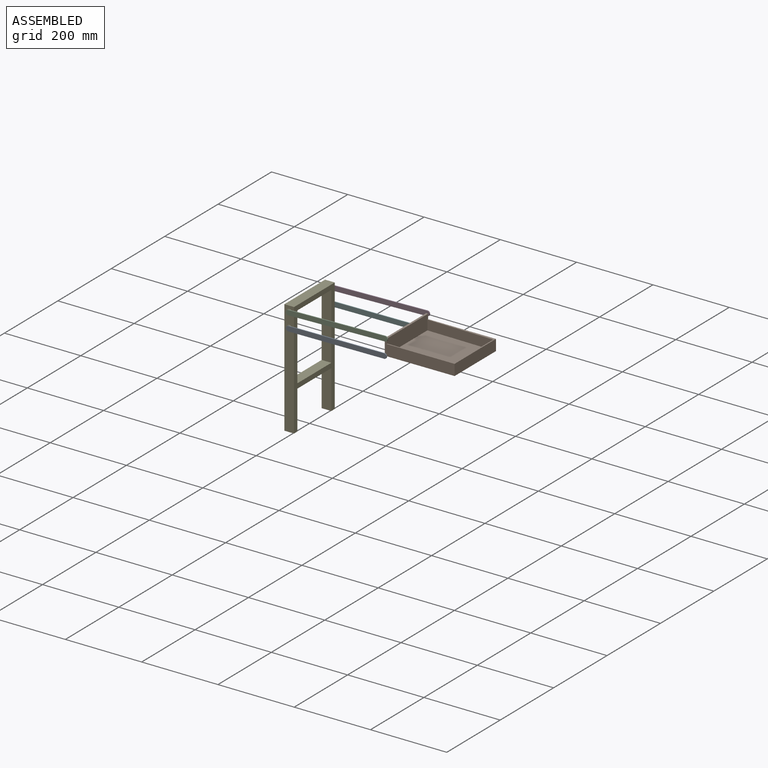
[diagram: assembled view]
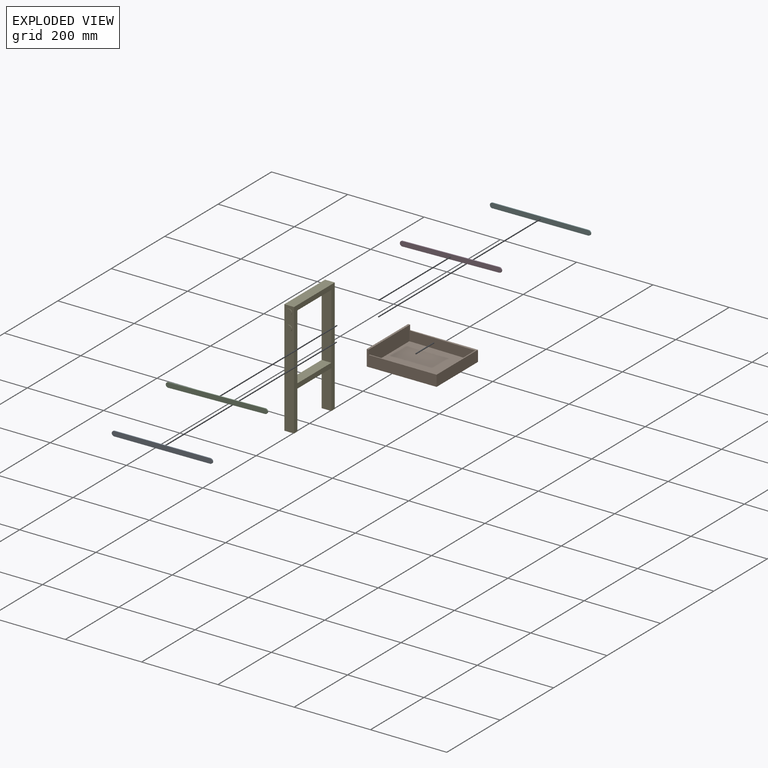
[diagram: exploded view]
GUIDED TOUR — MATED ASSEMBLY (Onshape document 858ce2b3064083f0d01fbd8e, AutoMate assembly 858ce2b3064083f0d01fbd8e_062a2cf71fd694ccb929598b_6919531b262e813028e73da2_default)

This assembly has 6 components, labeled P0..P5 below (a component is one placed occurrence of a part; the same part can appear more than once), held together by 8 mates. A mate is a constraint between two components; its type names the relative motion it leaves free:
  REVOLUTE — leaves rotation about the listed axis free (a hinge).
Axis/direction vectors are unit vectors and 'through' points are millimeter coordinates, both in the assembly's world frame.

MATES
  1. REVOLUTE "Revolute 6": P1 <-> P0, axis (0.000, -1.000, 0.000) through (251.45, -77.47, 134.54) mm
  2. REVOLUTE "Revolute 7": P3 <-> P1, axis (0.000, -1.000, 0.000) through (253.93, 77.47, 176.04) mm
  3. REVOLUTE "Revolute 8": P4 <-> P5, axis (0.000, 1.000, 0.000) through (0.00, 77.47, 132.08) mm
  4. REVOLUTE "Revolute 4": P5 <-> P1, axis (0.000, -1.000, 0.000) through (251.45, 77.47, 134.54) mm
  5. REVOLUTE "Revolute 5": P2 <-> P1, axis (0.000, 1.000, 0.000) through (253.93, -77.47, 176.04) mm
  6. REVOLUTE "Revolute 1": P2 <-> P4, axis (0.000, 1.000, 0.000) through (0.00, -77.47, 170.18) mm
  7. REVOLUTE "Revolute 2": P0 <-> P4, axis (0.000, 1.000, 0.000) through (0.00, -77.47, 132.08) mm
  8. REVOLUTE "Revolute 3": P3 <-> P4, axis (0.000, -1.000, 0.000) through (0.00, 77.47, 170.18) mm

ASSEMBLY ORDER
  1. P4 — the base component [order verified]
  2. P1 [order verified]
  3. P5 [order verified]
  4. P3 [order verified]
  5. P0 [order verified]
  6. P2 [order verified]
Order-tag legend:
  [order verified] — this step's position reverses a verified removal order: the component was checked to insert without passing through the ones already placed.

Of the 6 components, 1 carries the full construction recipe — the FeatureScript program that regenerates the part's solid from scratch; the rest are supplied as boundary geometry only.
Each toured component is shown spotlighted twice — in the assembled view, then in the exploded view, where a leader line traces a displaced component back to its assembled socket (saturated green if recipe-attached, orange if geometry-only; every other component desaturated gray) — followed by its recipe or geometry summary and the mates that hold it.
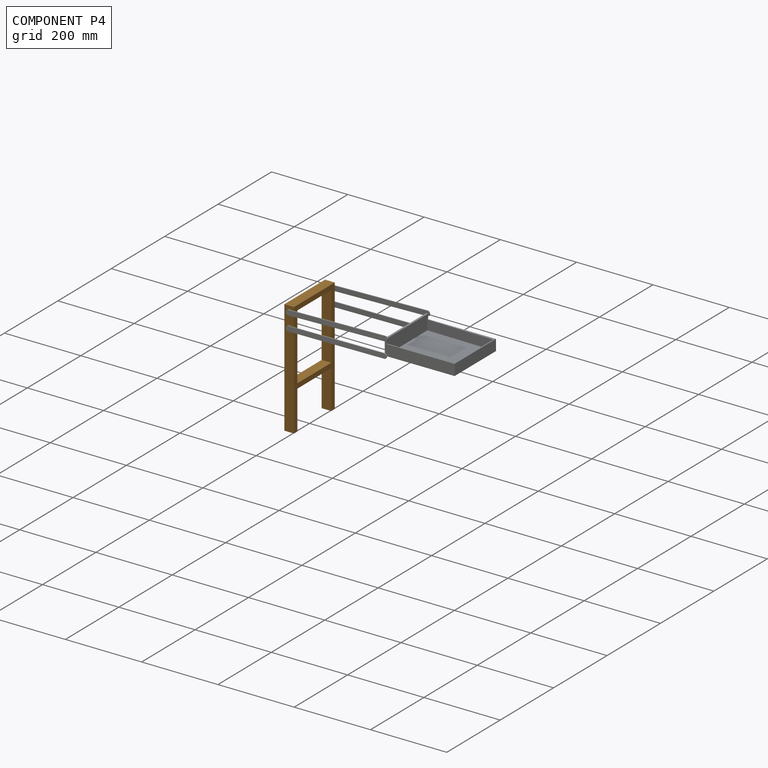
[diagram: component P4 — assembled]
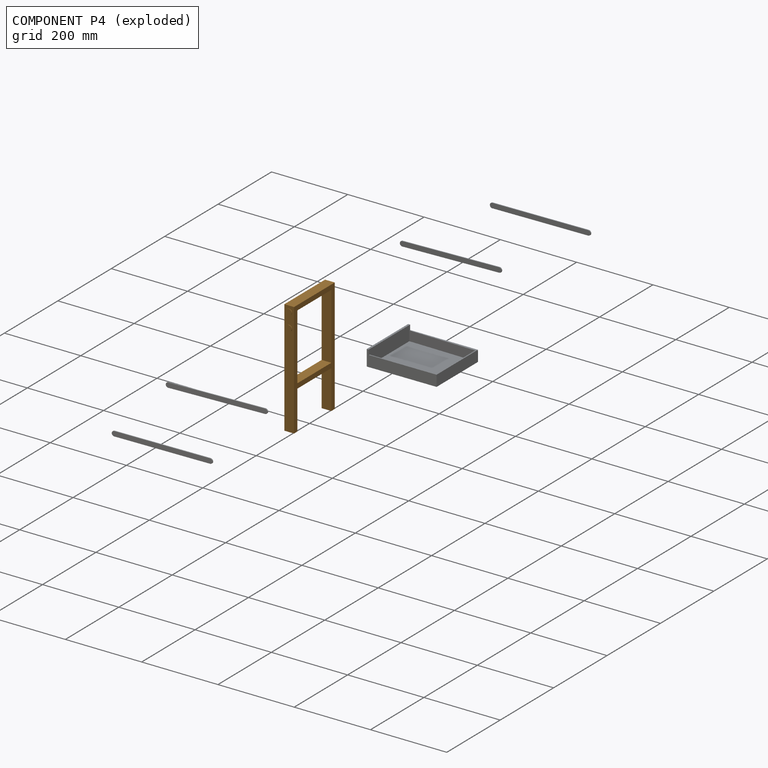
[diagram: component P4 — exploded]
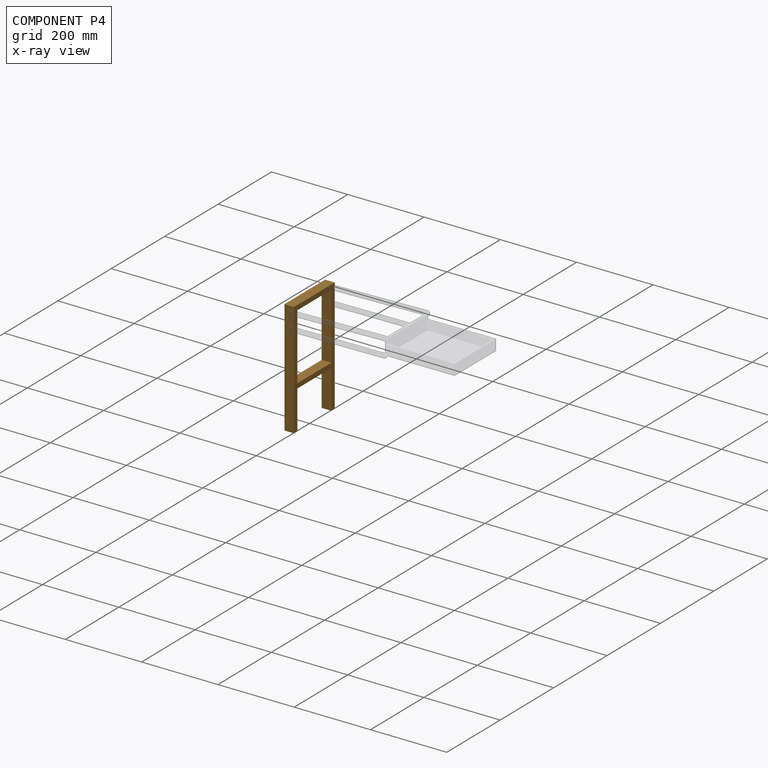
[diagram: component P4 — x-ray view]
COMPONENT P4 — geometry summary (no construction recipe available for this part):
  bounding box: 299.7 x 154.9 x 25.4 mm
  B-rep topology: 1 solid, 22 faces, 96 edges
  volume: 276229 mm^3 (23% of its bounding box)
  symmetry: 2-fold rotationally symmetric about the z axis; mirror-symmetric across its x mid-plane, y mid-plane
Held by: REVOLUTE mate "Revolute 8" to P5; REVOLUTE mate "Revolute 1" to P2; REVOLUTE mate "Revolute 2" to P0; REVOLUTE mate "Revolute 3" to P3.
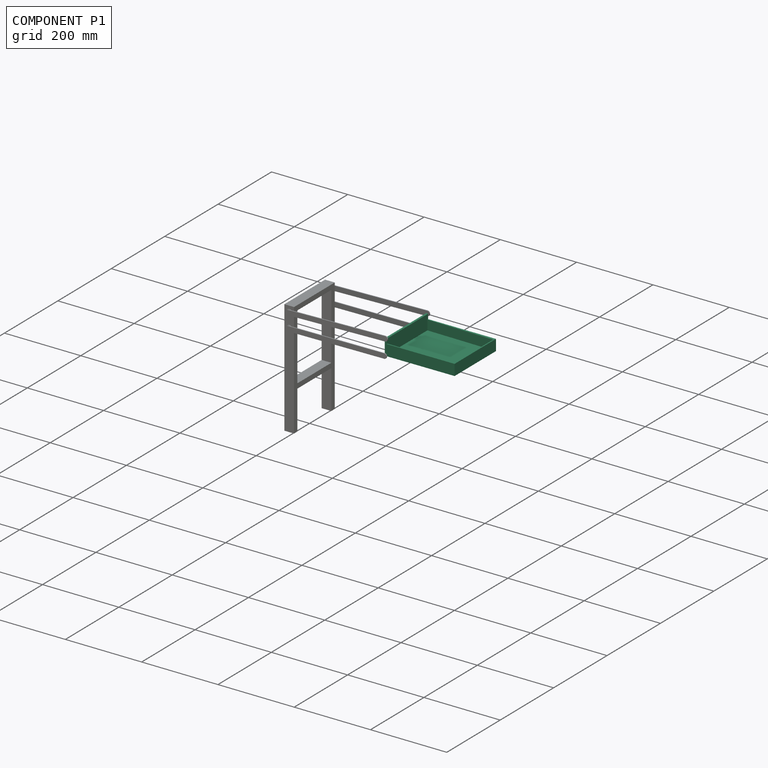
[diagram: component P1 — assembled]
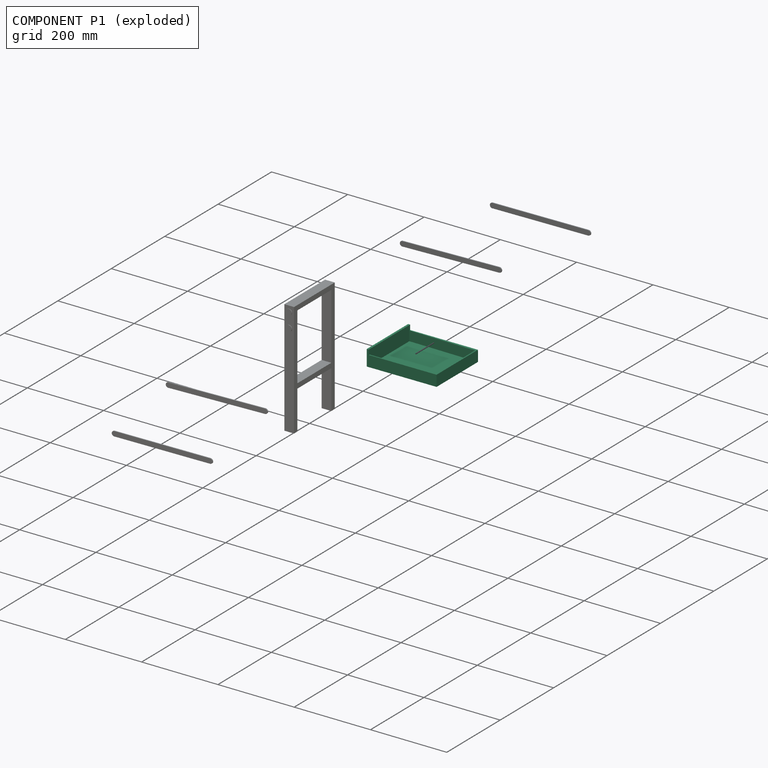
[diagram: component P1 — exploded]
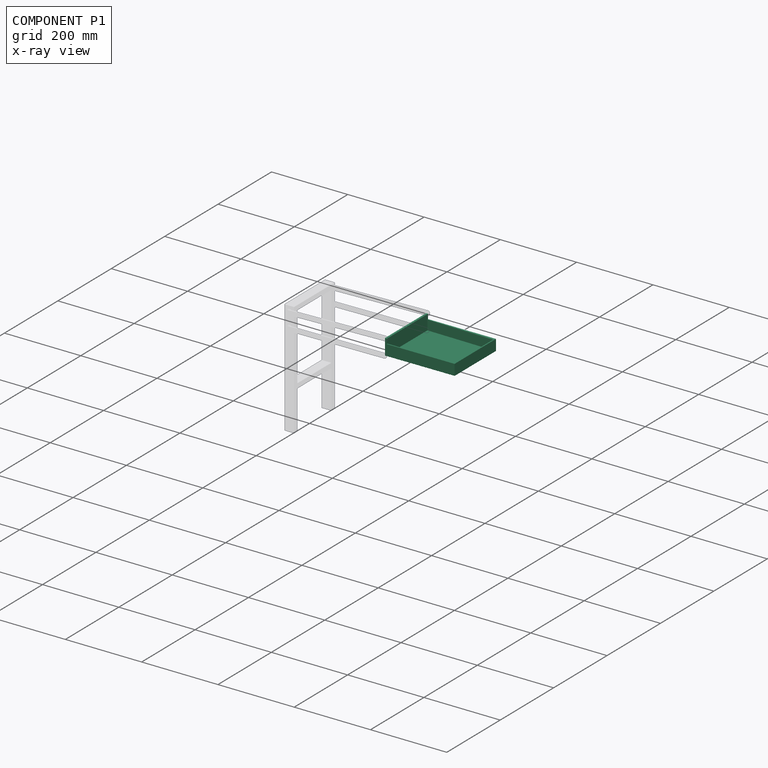
[diagram: component P1 — x-ray view]
COMPONENT P1 — recipe-attached (CADFS 00538765, mesh-verified: the recipe's output STEP matches this component's geometry to below the mesh-comparison resolution (tessellation chordal tolerance ~0.365 mm)).
Held by: REVOLUTE mate "Revolute 6" to P0; REVOLUTE mate "Revolute 7" to P3; REVOLUTE mate "Revolute 4" to P5; REVOLUTE mate "Revolute 5" to P2.
Construction recipe (FeatureScript — the CAD program that rebuilds this solid; sketch coordinates are in the units given by the * unit suffixes, e.g. mm):

FeatureScript 1511;
import(path : "onshape/std/geometry.fs", version : "1511.0");
import(path : "onshape/std/common.fs", version : "1511.0");
const mm = millimeter;
const VERTEX = EntityType.VERTEX;
const EDGE = EntityType.EDGE;
const FACE = EntityType.FACE;
const BODY = EntityType.BODY;
function v(x, y){return vector(x, y);}
function OD(order){return orderDisambiguation(order);}
function OSD(set){return originalSetDisambiguation(set);}
function TD(topology){return topologyDisambiguation(topology);}
function TDD(query){return trueDependencyDisambiguation(query);}
function sQuery(a, b, c) {return sketchEntityQuery(a, b, c);}

annotation { "Feature Type Name" : "Feature", "Feature Type Description" : "" }
export const myFeature = defineFeature(function(context is Context, id is Id, definition is map)
    precondition{}
    {
        {
            var Q0;
            Q0=qCreatedBy(makeId("Front.planeOp"),FACE);
            var sketch = newSketch(context, id + "F0", { "sketchPlane" : qUnion([Q0])});
            skLineSegment(sketch, "E0.top", {"start": v(0, 38.1) * mm, "end": v(-5.29, 38.1) * mm});
            skLineSegment(sketch, "E0.left", {"start": v(0, 0) * mm, "end": v(0, 38.1) * mm});
            skLineSegment(sketch, "E1", {"start": v(0, 0) * mm, "end": v(177.8, 0) * mm});
            skLineSegment(sketch, "E2", {"start": v(177.8, 0) * mm, "end": v(177.8, -3.39) * mm});
            skLineSegment(sketch, "E3", {"start": v(177.8, -3.39) * mm, "end": v(-5.29, -3.39) * mm});
            skLineSegment(sketch, "E4", {"start": v(-5.29, 38.1) * mm, "end": v(-5.29, -3.39) * mm});
            skSolve(sketch);
        }
        {
            var Q0;
            Q0 = qSketchRegion(id + "F0", true);
            extrude(context, id + "F1", {"entities" : qUnion([Q0]), "endBound" : BoundingType.SYMMETRIC, "depth" : 154.94 * mm, "offsetDistance" : 25.4 * mm});
        }
        {
            var Q0;
            Q0=makeQuery(id+"F1.opExtrude","SWEPT_FACE",FACE,{"disambiguationData":[OSD([sQuery(id+"F0.wireOp",EDGE,"E0.left")])]});
            var sketch = newSketch(context, id + "F2", { "sketchPlane" : qUnion([Q0])});
            skLineSegment(sketch, "E5.bottom", {"start": v(-64.77, 55.88) * mm, "end": v(64.77, 55.88) * mm});
            skLineSegment(sketch, "E5.top", {"start": v(-64.77, 0) * mm, "end": v(64.77, 0) * mm});
            skLineSegment(sketch, "E5.left", {"start": v(-64.77, 55.88) * mm, "end": v(-64.77, 0) * mm});
            skLineSegment(sketch, "E5.right", {"start": v(64.77, 55.88) * mm, "end": v(64.77, 0) * mm});
            skSolve(sketch);
        }
        {
            var Q0;
            Q0=makeQuery(id+"FWv1kH76DlVqDbQ_1.boolean.opBoolean","MERGE",FACE,{"derivedFrom":[makeQuery(id+"F1.opExtrude","SWEPT_FACE",FACE,{"disambiguationData":[OSD([sQuery(id+"F0.wireOp",EDGE,"E1")])]}),makeQuery(id+"FWv1kH76DlVqDbQ_1.opExtrude","SWEPT_FACE",FACE,{"disambiguationData":[OSD([sQuery(id+"F2.wireOp",EDGE,"E5.top")])]})]});
            var sketch = newSketch(context, id + "F3", { "sketchPlane" : qUnion([Q0])});
            skLineSegment(sketch, "E6", {"start": v(0, -77.47) * mm, "end": v(177.8, -77.47) * mm});
            skLineSegment(sketch, "E7", {"start": v(177.8, -77.47) * mm, "end": v(177.8, 77.47) * mm});
            skLineSegment(sketch, "E8", {"start": v(177.8, 77.47) * mm, "end": v(0, 77.47) * mm});
            skLineSegment(sketch, "E9", {"start": v(0, 77.47) * mm, "end": v(-0.06, 74.55) * mm});
            skLineSegment(sketch, "E10", {"start": v(-0.06, 74.55) * mm, "end": v(174.88, 71.13) * mm});
            skLineSegment(sketch, "E11", {"start": v(174.88, 71.13) * mm, "end": v(174.88, -74.6) * mm});
            skLineSegment(sketch, "E12", {"start": v(174.88, -74.6) * mm, "end": v(0, -74.56) * mm});
            skLineSegment(sketch, "E13", {"start": v(0, -77.47) * mm, "end": v(0, -74.56) * mm});
            skSolve(sketch);
        }
        {
            var Q0;
            Q0 = qSketchRegion(id + "F3", true);
            extrude(context, id + "F4", {"entities" : qUnion([Q0]), "operationType" : NewBodyOperationType.ADD, "depth" : 25.4 * mm, "offsetDistance" : 25.4 * mm});
        }
    });
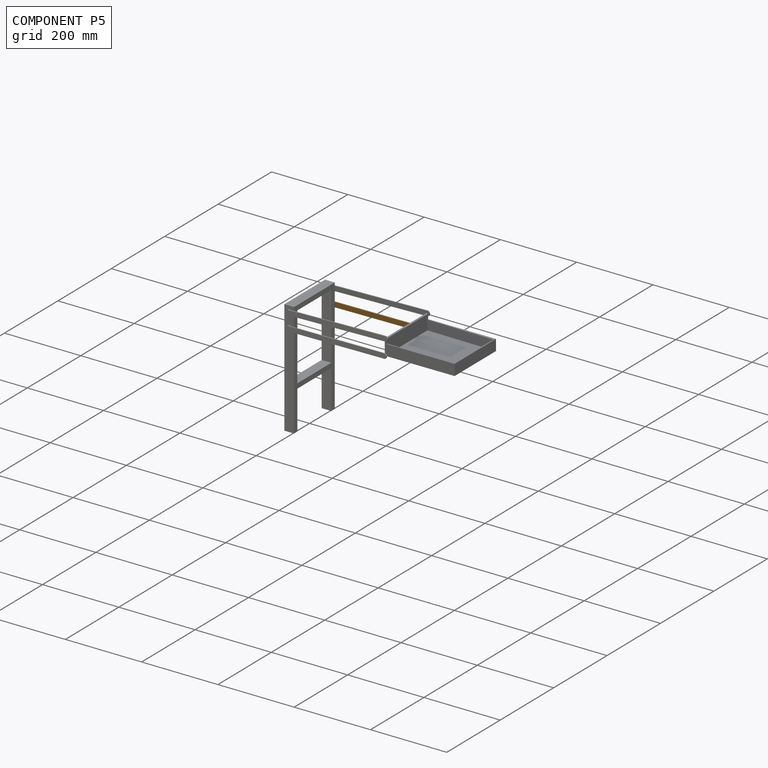
[diagram: component P5 — assembled]
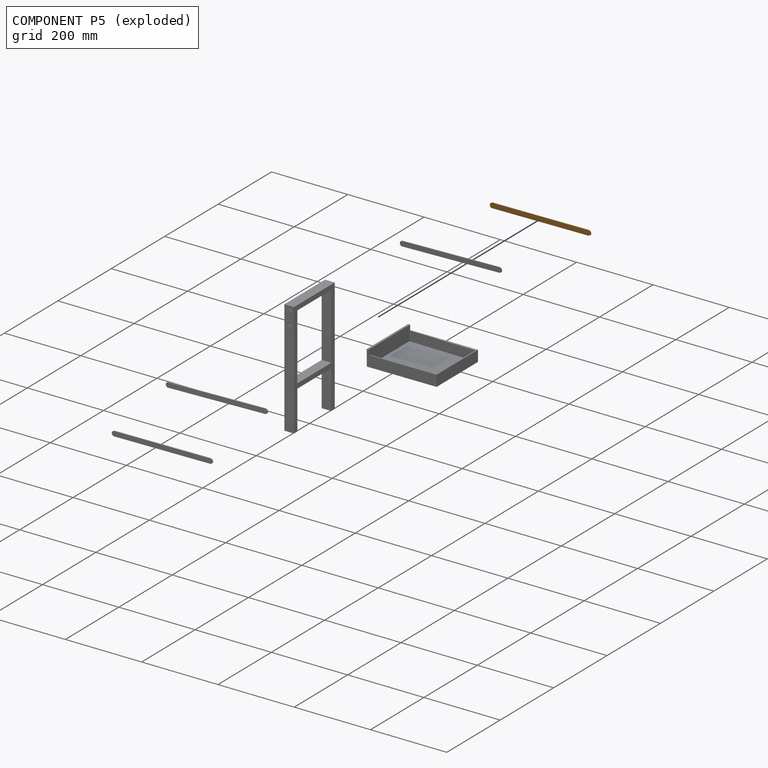
[diagram: component P5 — exploded]
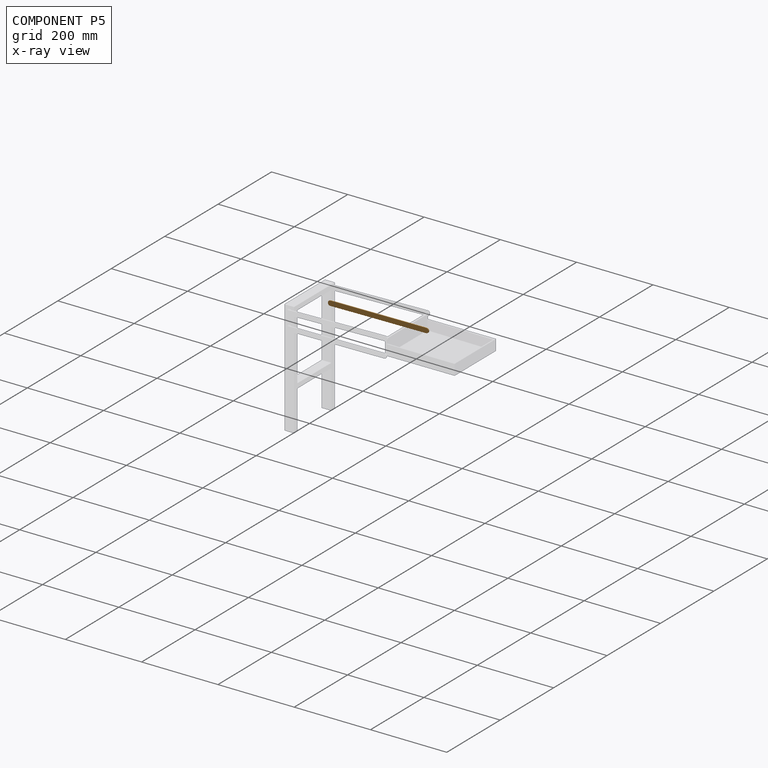
[diagram: component P5 — x-ray view]
COMPONENT P5 — geometry summary (no construction recipe available for this part):
  bounding box: 264.2 x 12.7 x 2.5 mm
  B-rep topology: 1 solid, 6 faces, 24 edges
  volume: 8433 mm^3 (99% of its bounding box)
  symmetry: 2-fold rotationally symmetric about the x axis; 2-fold rotationally symmetric about the y axis; 2-fold rotationally symmetric about the z axis; mirror-symmetric across its x mid-plane, y mid-plane, z mid-plane
Held by: REVOLUTE mate "Revolute 8" to P4; REVOLUTE mate "Revolute 4" to P1.
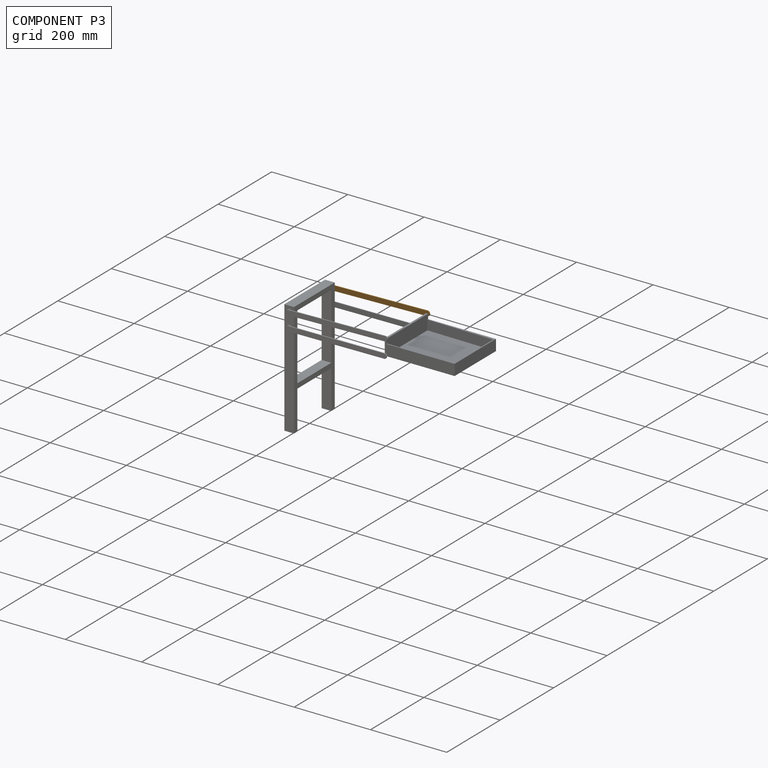
[diagram: component P3 — assembled]
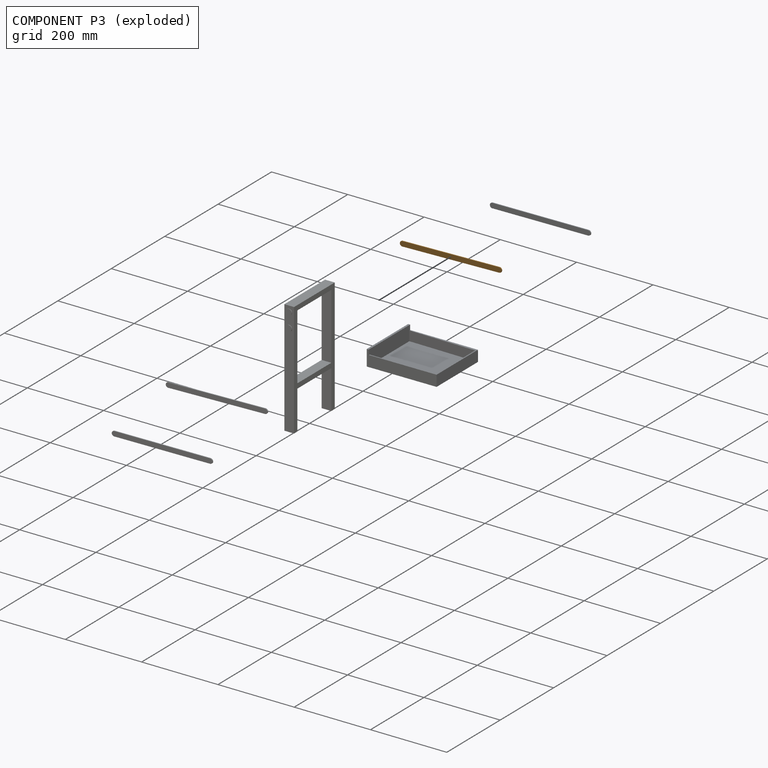
[diagram: component P3 — exploded]
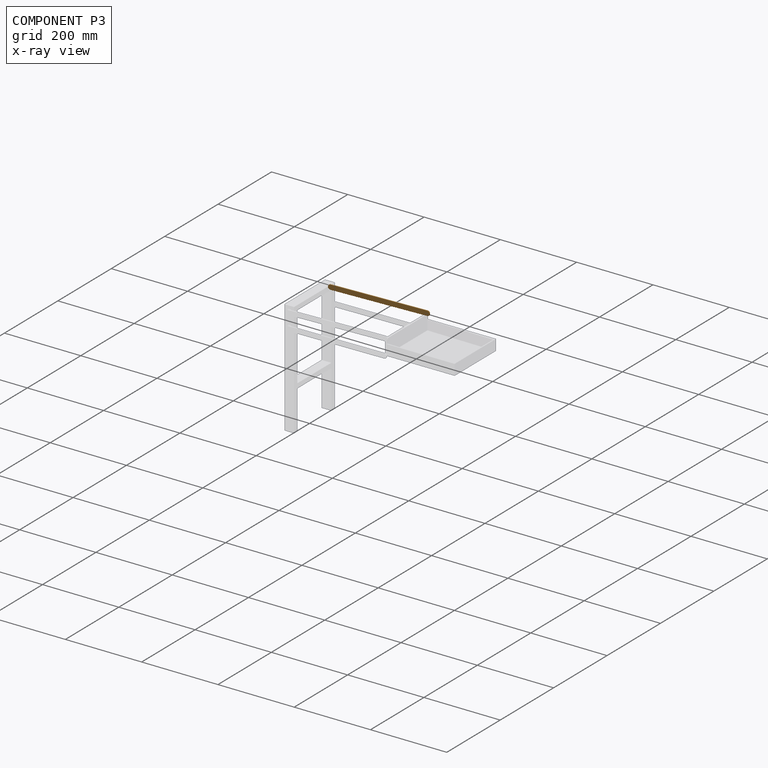
[diagram: component P3 — x-ray view]
COMPONENT P3 — geometry summary (no construction recipe available for this part):
  bounding box: 266.7 x 12.7 x 2.5 mm
  B-rep topology: 1 solid, 6 faces, 24 edges
  volume: 8515 mm^3 (99% of its bounding box)
  symmetry: 2-fold rotationally symmetric about the x axis; 2-fold rotationally symmetric about the y axis; 2-fold rotationally symmetric about the z axis; mirror-symmetric across its x mid-plane, y mid-plane, z mid-plane
Held by: REVOLUTE mate "Revolute 7" to P1; REVOLUTE mate "Revolute 3" to P4.
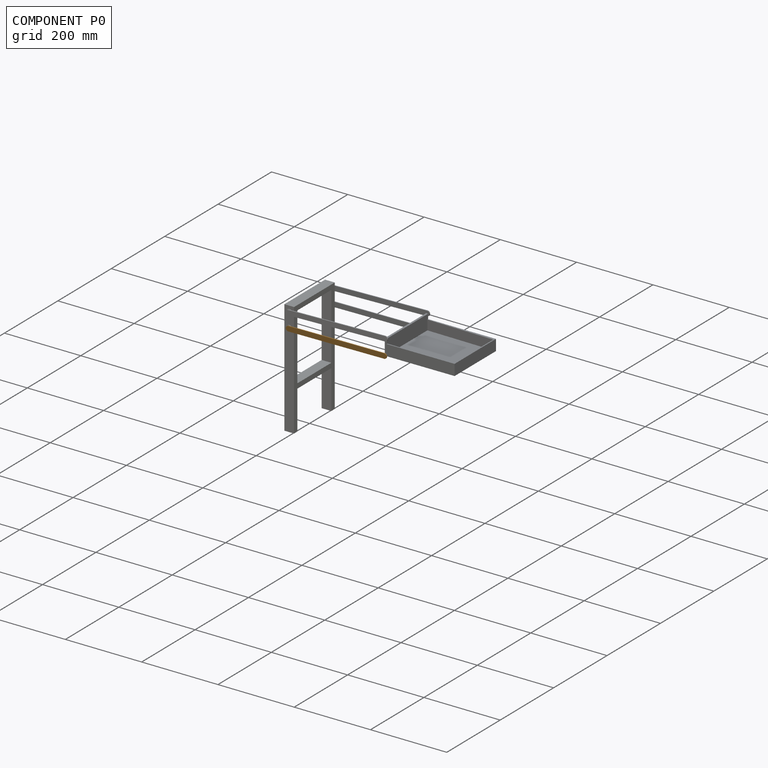
[diagram: component P0 — assembled]
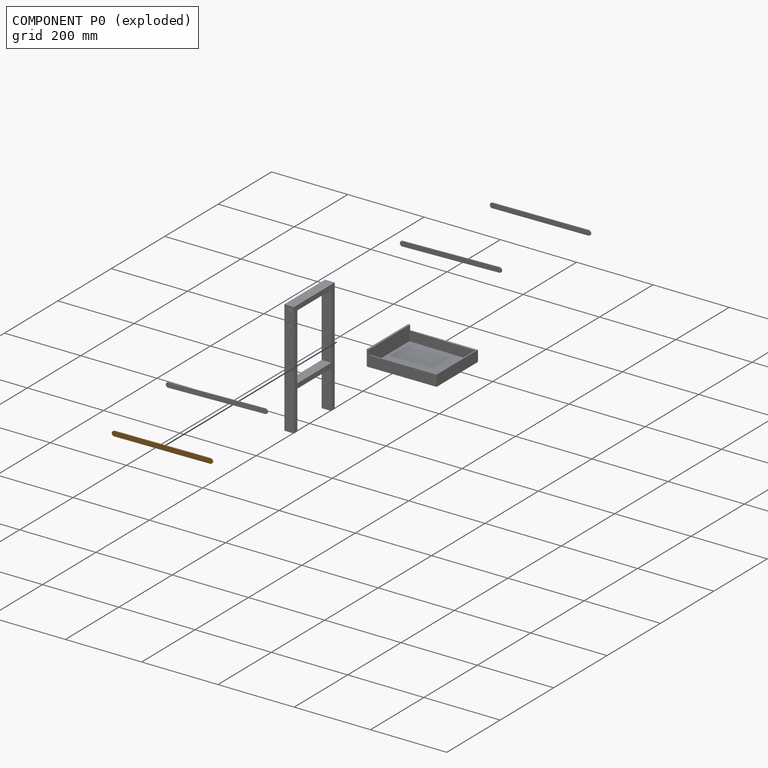
[diagram: component P0 — exploded]
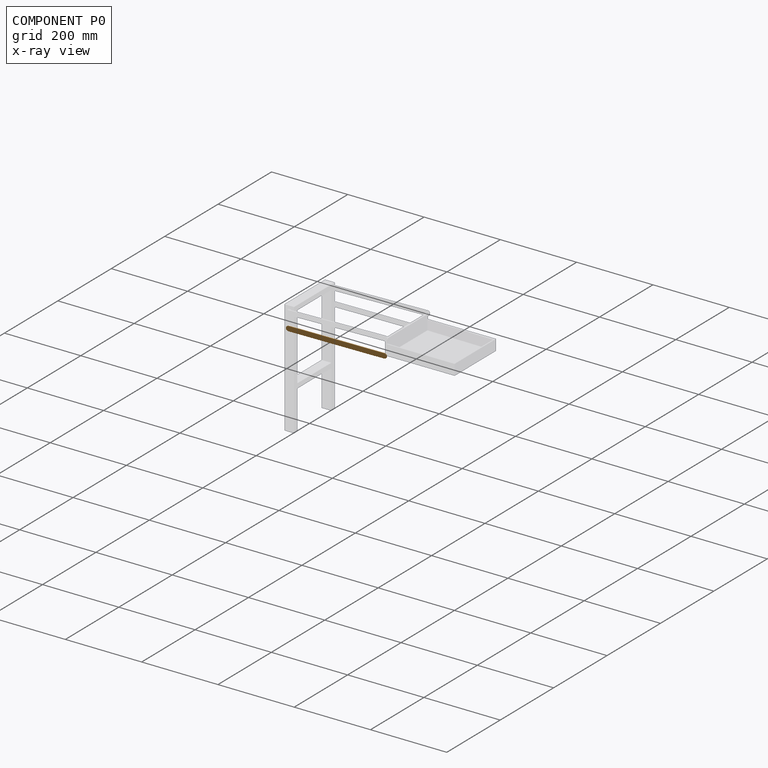
[diagram: component P0 — x-ray view]
COMPONENT P0 — geometry summary (no construction recipe available for this part):
  bounding box: 264.2 x 12.7 x 2.5 mm
  B-rep topology: 1 solid, 6 faces, 24 edges
  volume: 8433 mm^3 (99% of its bounding box)
  symmetry: 2-fold rotationally symmetric about the x axis; 2-fold rotationally symmetric about the y axis; 2-fold rotationally symmetric about the z axis; mirror-symmetric across its x mid-plane, y mid-plane, z mid-plane
Held by: REVOLUTE mate "Revolute 6" to P1; REVOLUTE mate "Revolute 2" to P4.
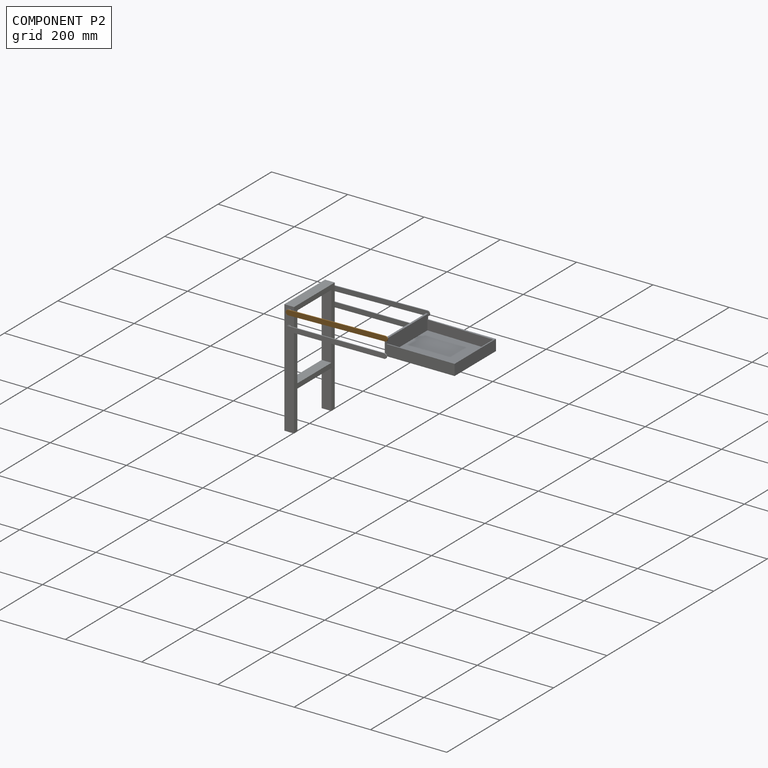
[diagram: component P2 — assembled]
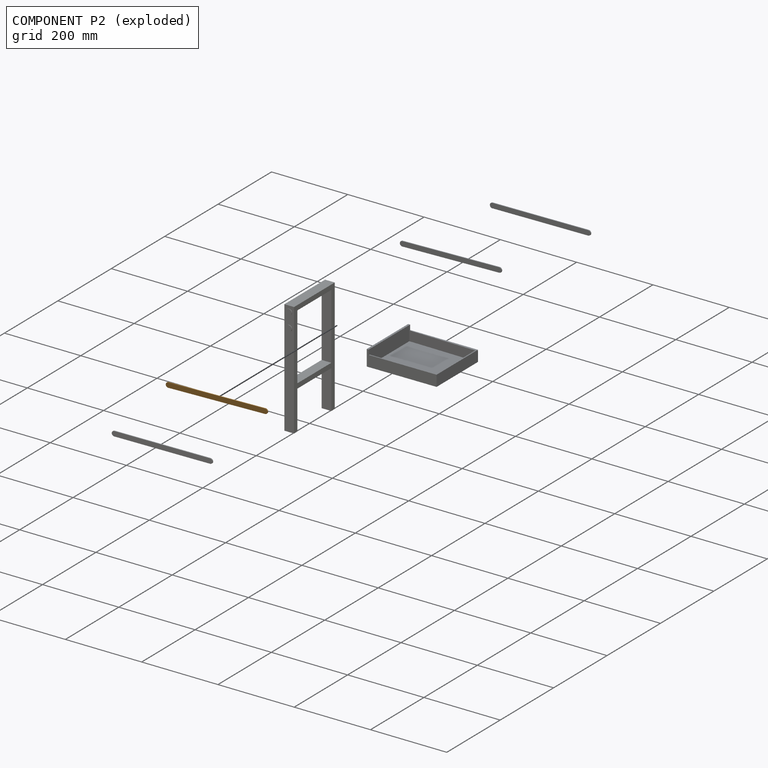
[diagram: component P2 — exploded]
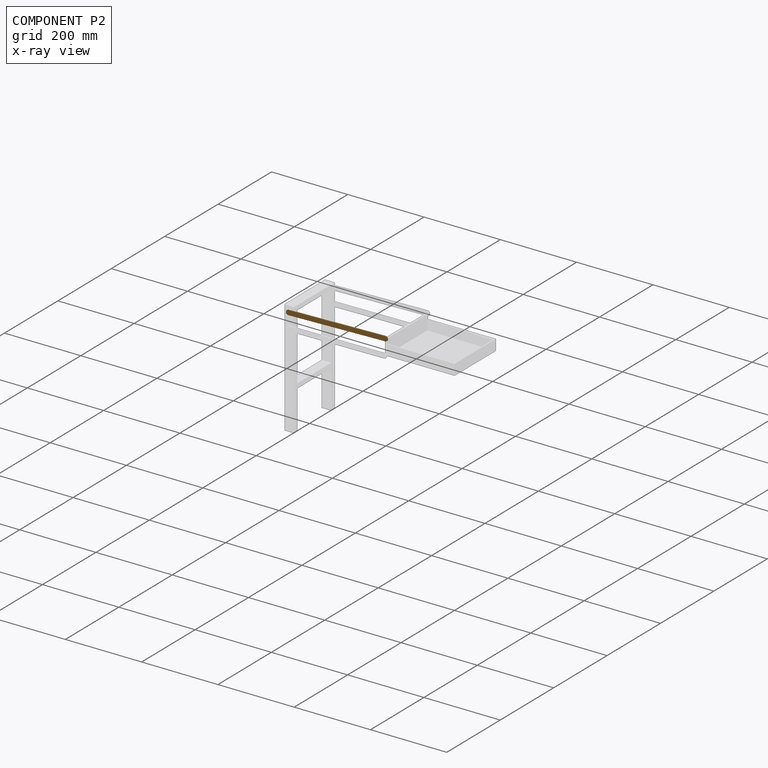
[diagram: component P2 — x-ray view]
COMPONENT P2 — geometry summary (no construction recipe available for this part):
  bounding box: 266.7 x 12.7 x 2.5 mm
  B-rep topology: 1 solid, 6 faces, 24 edges
  volume: 8515 mm^3 (99% of its bounding box)
  symmetry: 2-fold rotationally symmetric about the x axis; 2-fold rotationally symmetric about the y axis; 2-fold rotationally symmetric about the z axis; mirror-symmetric across its x mid-plane, y mid-plane, z mid-plane
Held by: REVOLUTE mate "Revolute 5" to P1; REVOLUTE mate "Revolute 1" to P4.
PROVENANCE & LICENSES
Assembly (occurrences, transforms, mates, per-part STEP geometry): AutoMate dataset, Zenodo record 7776208, CC0.
Construction recipes: CADFS (HuggingFace VladPyatov/CADFS, CC-BY-4.0, layered over the ABC dataset), FeatureScript reconstruction programs keyed by ABC model id.
Join: ABC meta listings map ABC model id -> Onshape documentId; within a shared document, parts are matched by geometric signature (bounding-box dims + volume at 0.1% relative tolerance, exact B-rep face/solid counts).
Verification: 1 of this assembly's 6 components carries a recipe attachment, and every attachment is mesh-verified: the CADFS STEP and the AutoMate member STEP were compared as meshes in their shared local frame (symmetric sampled-point-to-mesh distance); worst across the 1 attachment: below the mesh-comparison resolution (tessellation chordal tolerance ~0.365 mm) on a 243 mm part.
Renders: orthographic iso camera (az 35 / el 25); the floor grid conveys scale (grid pitch printed in each image; no ruler). In the exploded view each component is displaced by its stored offset vector: the offsets alone carry the explosion direction (mate normal/axis signs are not orientation cues and do not encode it), and separation distances are assigned per mate-chain, not proportionally to assembly-order depth.
